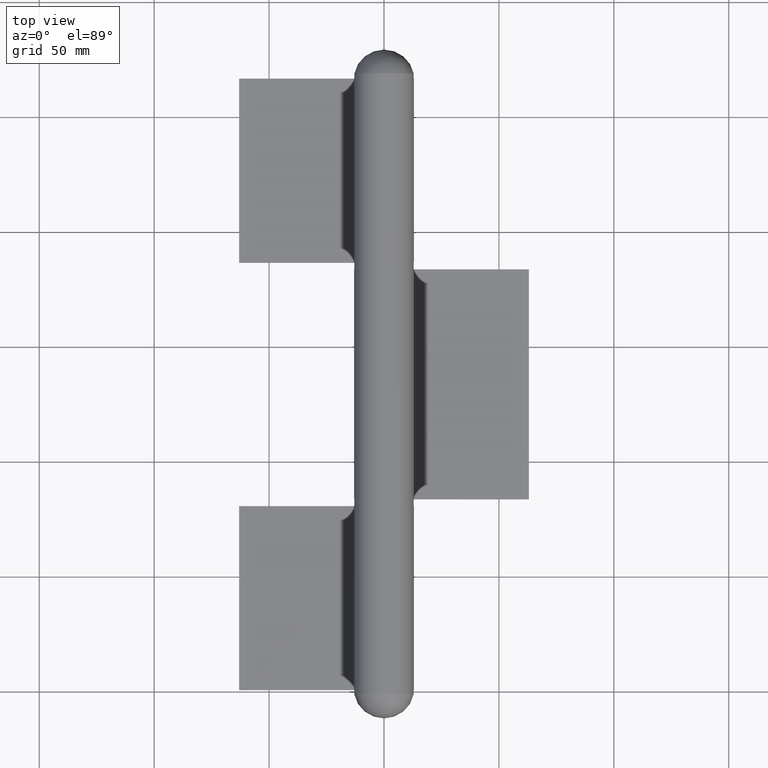
[diagram: clean part render]
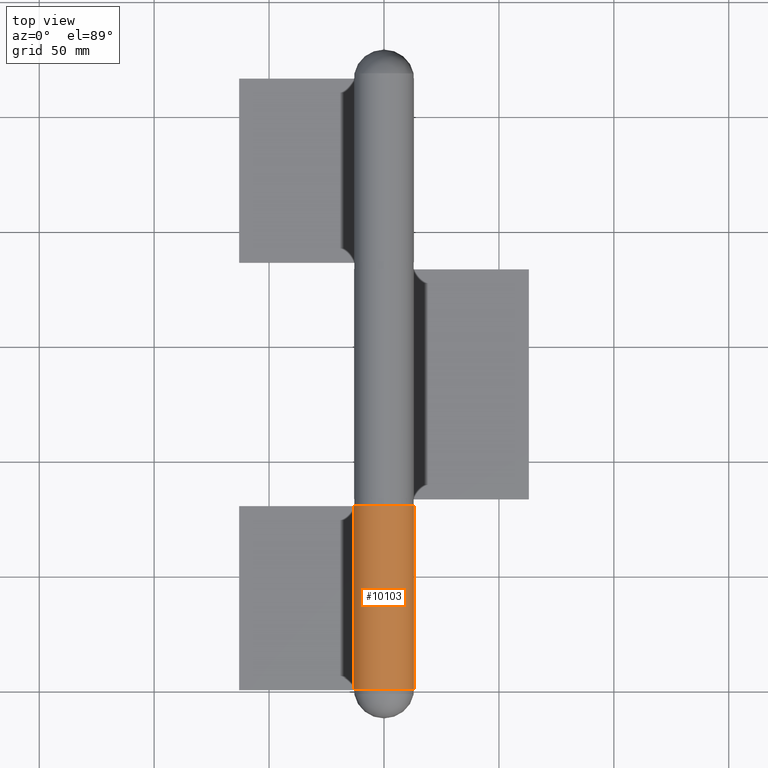
[diagram: same view with one face highlighted and labeled with its STEP entity id]
A machine part, top view. The second image highlights one B-rep face of the part: STEP entity #10103.
In plain terms, the highlighted cylindrical surface (edge-blend (fillet) strip) has radius 13.05 mm, axis along (0, -1, -0).
Its self-contained STEP definition (entity closure, byte-faithful):
#926 = EDGE_CURVE ( 'NONE', #2109, #11330, #7380, .T. ) ;
#994 = EDGE_LOOP ( 'NONE', ( #6615, #9393, #5520, #7925 ) ) ;
#1223 = CIRCLE ( 'NONE', #11937, 13.05000000000000604 ) ;
#1616 = CARTESIAN_POINT ( 'NONE',  ( -13.04999999999999716, 40.00000000000000000, 2.397246109330944548E-15 ) ) ;
#2109 = VERTEX_POINT ( 'NONE', #8536 ) ;
#2964 = CARTESIAN_POINT ( 'NONE',  ( 8.673617379884035472E-15, 40.00000000000000000, 0.000000000000000000 ) ) ;
#3215 = DIRECTION ( 'NONE',  ( -0.000000000000000000, -1.000000000000000000, -0.000000000000000000 ) ) ;
#3761 = CARTESIAN_POINT ( 'NONE',  ( 8.673617379884035472E-15, 40.00000000000000000, 0.000000000000000000 ) ) ;
#3792 = DIRECTION ( 'NONE',  ( 0.000000000000000000, 0.000000000000000000, -1.000000000000000000 ) ) ;
#4122 = DIRECTION ( 'NONE',  ( 0.000000000000000000, 1.000000000000000000, -0.000000000000000000 ) ) ;
#4906 = VECTOR ( 'NONE', #7771, 1000.000000000000000 ) ;
#5520 = ORIENTED_EDGE ( 'NONE', *, *, #9901, .F. ) ;
#5763 = AXIS2_PLACEMENT_3D ( 'NONE', #3761, #5913, #10790 ) ;
#5783 = CARTESIAN_POINT ( 'NONE',  ( 8.673617379884035472E-15, -40.00000000000000000, 0.000000000000000000 ) ) ;
#5855 = CARTESIAN_POINT ( 'NONE',  ( -6.550000000000000711, 40.00000000000000000, 11.28716084761796701 ) ) ;
#5913 = DIRECTION ( 'NONE',  ( -0.000000000000000000, -1.000000000000000000, -0.000000000000000000 ) ) ;
#6615 = ORIENTED_EDGE ( 'NONE', *, *, #12918, .T. ) ;
#6714 = DIRECTION ( 'NONE',  ( 0.000000000000000000, 1.000000000000000000, -0.000000000000000000 ) ) ;
#7197 = CARTESIAN_POINT ( 'NONE',  ( -13.04999999999999716, 40.00000000000000000, 2.397246109330944548E-15 ) ) ;
#7279 = VERTEX_POINT ( 'NONE', #10967 ) ;
#7380 = LINE ( 'NONE', #5855, #4906 ) ;
#7771 = DIRECTION ( 'NONE',  ( -0.000000000000000000, -1.000000000000000000, -0.000000000000000000 ) ) ;
#7925 = ORIENTED_EDGE ( 'NONE', *, *, #926, .T. ) ;
#8344 = VERTEX_POINT ( 'NONE', #1616 ) ;
#8536 = CARTESIAN_POINT ( 'NONE',  ( -6.550000000000000711, 40.00000000000000000, 11.28716084761796701 ) ) ;
#8585 = EDGE_CURVE ( 'NONE', #8344, #7279, #10068, .T. ) ;
#9115 = DIRECTION ( 'NONE',  ( 0.000000000000000000, 0.000000000000000000, -1.000000000000000000 ) ) ;
#9370 = AXIS2_PLACEMENT_3D ( 'NONE', #2964, #4122, #9115 ) ;
#9393 = ORIENTED_EDGE ( 'NONE', *, *, #8585, .F. ) ;
#9901 = EDGE_CURVE ( 'NONE', #2109, #8344, #10364, .T. ) ;
#10068 = LINE ( 'NONE', #7197, #11143 ) ;
#10103 = ADVANCED_FACE ( 'NONE', ( #13002 ), #12206, .T. ) ;
#10364 = CIRCLE ( 'NONE', #9370, 13.05000000000000604 ) ;
#10790 = DIRECTION ( 'NONE',  ( 0.000000000000000000, 0.000000000000000000, -1.000000000000000000 ) ) ;
#10967 = CARTESIAN_POINT ( 'NONE',  ( -13.04999999999999716, -40.00000000000000000, 2.397246109330944548E-15 ) ) ;
#11143 = VECTOR ( 'NONE', #3215, 1000.000000000000000 ) ;
#11330 = VERTEX_POINT ( 'NONE', #11495 ) ;
#11495 = CARTESIAN_POINT ( 'NONE',  ( -6.550000000000000711, -40.00000000000000000, 11.28716084761796701 ) ) ;
#11937 = AXIS2_PLACEMENT_3D ( 'NONE', #5783, #6714, #3792 ) ;
#12206 = CYLINDRICAL_SURFACE ( 'NONE', #5763, 13.05000000000000604 ) ;
#12918 = EDGE_CURVE ( 'NONE', #11330, #7279, #1223, .T. ) ;
#13002 = FACE_OUTER_BOUND ( 'NONE', #994, .T. ) ;